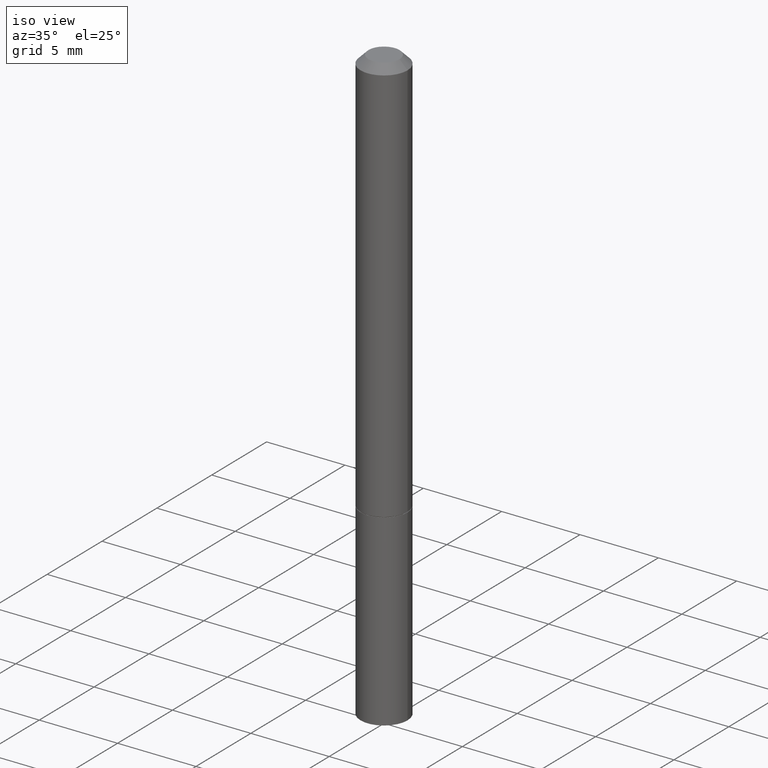
[diagram: clean part render]
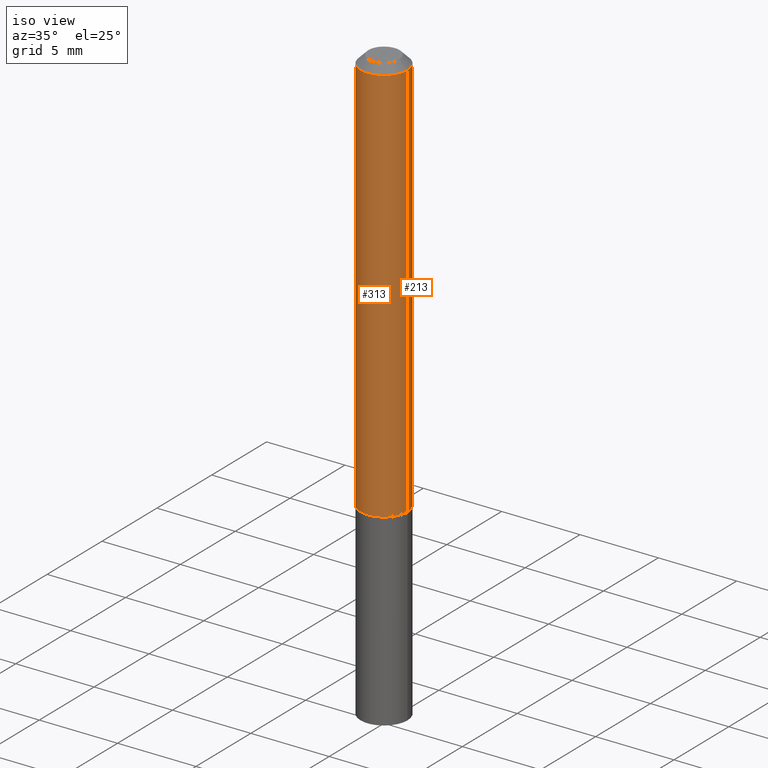
[diagram: same view with one multi-face feature highlighted, each face labeled with its STEP entity id]
A machine part, iso view. The highlighted faces form ONE feature: a constant-radius fillet chain: 2 tangent blend faces with common blend radius 1.4999 mm. The faces share edges in the B-rep.
Their STEP definitions:
[1] entity #313 (Cylinder):
#2 = CIRCLE ( 'NONE', #361, 0.05904999999999988036 ) ;
#12 = AXIS2_PLACEMENT_3D ( 'NONE', #307, #276, #244 ) ;
#16 = ORIENTED_EDGE ( 'NONE', *, *, #140, .T. ) ;
#43 = AXIS2_PLACEMENT_3D ( 'NONE', #124, #318, #178 ) ;
#61 = EDGE_CURVE ( 'NONE', #339, #366, #258, .T. ) ;
#63 = DIRECTION ( 'NONE',  ( -2.445468806185136597E-29, 3.491481338843145583E-15, 1.000000000000000000 ) ) ;
#72 = EDGE_LOOP ( 'NONE', ( #165, #133, #16, #364 ) ) ;
#82 = CARTESIAN_POINT ( 'NONE',  ( -0.05905000000000001914, -1.400708310539532881E-15, -1.022699999999999942 ) ) ;
#101 = VECTOR ( 'NONE', #295, 39.37007874015748143 ) ;
#110 = EDGE_CURVE ( 'NONE', #339, #182, #170, .T. ) ;
#124 = CARTESIAN_POINT ( 'NONE',  ( 2.500980948085539022E-29, -3.570737965234884606E-15, -1.022699999999999942 ) ) ;
#133 = ORIENTED_EDGE ( 'NONE', *, *, #110, .T. ) ;
#140 = EDGE_CURVE ( 'NONE', #182, #272, #235, .T. ) ;
#141 = CARTESIAN_POINT ( 'NONE',  ( -0.05904999999999988036, 3.425143193405099949E-16, -0.02000000000000007674 ) ) ;
#148 = EDGE_CURVE ( 'NONE', #366, #272, #2, .T. ) ;
#150 = CARTESIAN_POINT ( 'NONE',  ( 0.05905000000000001914, -3.983081911352258737E-15, -1.022699999999999942 ) ) ;
#162 = VECTOR ( 'NONE', #351, 39.37007874015748143 ) ;
#165 = ORIENTED_EDGE ( 'NONE', *, *, #61, .F. ) ;
#170 = CIRCLE ( 'NONE', #43, 0.05905000000000001914 ) ;
#178 = DIRECTION ( 'NONE',  ( 1.000000000000000000, -6.982962677686262766E-15, 0.000000000000000000 ) ) ;
#182 = VERTEX_POINT ( 'NONE', #150 ) ;
#188 = FACE_OUTER_BOUND ( 'NONE', #72, .T. ) ;
#200 = CARTESIAN_POINT ( 'NONE',  ( -0.05904999999999994975, 4.195754854663388027E-16, -2.904631170795519440E-30 ) ) ;
#235 = LINE ( 'NONE', #324, #101 ) ;
#243 = CARTESIAN_POINT ( 'NONE',  ( 0.05904999999999988036, -4.749420335452712790E-16, -0.02000000000000007674 ) ) ;
#244 = DIRECTION ( 'NONE',  ( 1.000000000000000000, -6.982962677686266711E-15, 4.876176775795935232E-29 ) ) ;
#258 = LINE ( 'NONE', #200, #162 ) ;
#272 = VERTEX_POINT ( 'NONE', #243 ) ;
#273 = CYLINDRICAL_SURFACE ( 'NONE', #12, 0.05904999999999994975 ) ;
#276 = DIRECTION ( 'NONE',  ( -2.445468806185136597E-29, 3.491481338843145583E-15, 1.000000000000000000 ) ) ;
#295 = DIRECTION ( 'NONE',  ( -2.445468806185136877E-29, 3.491481338843145188E-15, 1.000000000000000000 ) ) ;
#296 = CARTESIAN_POINT ( 'NONE',  ( 4.890937612370292426E-31, -6.982962677686317493E-17, -0.02000000000000007674 ) ) ;
#307 = CARTESIAN_POINT ( 'NONE',  ( 0.000000000000000000, 0.000000000000000000, 0.000000000000000000 ) ) ;
#313 = ADVANCED_FACE ( 'NONE', ( #188 ), #273, .T. ) ;
#318 = DIRECTION ( 'NONE',  ( -2.445468806185136597E-29, 3.491481338843145583E-15, 1.000000000000000000 ) ) ;
#324 = CARTESIAN_POINT ( 'NONE',  ( 0.05904999999999994975, -4.123439461173736876E-16, 2.879382386107497418E-30 ) ) ;
#339 = VERTEX_POINT ( 'NONE', #82 ) ;
#342 = DIRECTION ( 'NONE',  ( 1.000000000000000000, -6.982962677686266711E-15, 0.000000000000000000 ) ) ;
#351 = DIRECTION ( 'NONE',  ( -2.445468806185136877E-29, 3.491481338843145188E-15, 1.000000000000000000 ) ) ;
#361 = AXIS2_PLACEMENT_3D ( 'NONE', #296, #63, #342 ) ;
#364 = ORIENTED_EDGE ( 'NONE', *, *, #148, .F. ) ;
#366 = VERTEX_POINT ( 'NONE', #141 ) ;
[2] entity #213 (Cylinder):
#17 = CARTESIAN_POINT ( 'NONE',  ( 2.500980948085539022E-29, -3.570737965234884606E-15, -1.022699999999999942 ) ) ;
#30 = AXIS2_PLACEMENT_3D ( 'NONE', #292, #96, #69 ) ;
#46 = CARTESIAN_POINT ( 'NONE',  ( 0.000000000000000000, 0.000000000000000000, 0.000000000000000000 ) ) ;
#51 = FACE_OUTER_BOUND ( 'NONE', #277, .T. ) ;
#61 = EDGE_CURVE ( 'NONE', #339, #366, #258, .T. ) ;
#69 = DIRECTION ( 'NONE',  ( 1.000000000000000000, -6.982962677686266711E-15, 0.000000000000000000 ) ) ;
#73 = EDGE_CURVE ( 'NONE', #272, #366, #184, .T. ) ;
#82 = CARTESIAN_POINT ( 'NONE',  ( -0.05905000000000001914, -1.400708310539532881E-15, -1.022699999999999942 ) ) ;
#96 = DIRECTION ( 'NONE',  ( -2.445468806185136597E-29, 3.491481338843145583E-15, 1.000000000000000000 ) ) ;
#101 = VECTOR ( 'NONE', #295, 39.37007874015748143 ) ;
#136 = DIRECTION ( 'NONE',  ( -2.445468806185136597E-29, 3.491481338843145583E-15, 1.000000000000000000 ) ) ;
#140 = EDGE_CURVE ( 'NONE', #182, #272, #235, .T. ) ;
#141 = CARTESIAN_POINT ( 'NONE',  ( -0.05904999999999988036, 3.425143193405099949E-16, -0.02000000000000007674 ) ) ;
#143 = ORIENTED_EDGE ( 'NONE', *, *, #61, .T. ) ;
#147 = AXIS2_PLACEMENT_3D ( 'NONE', #17, #136, #330 ) ;
#150 = CARTESIAN_POINT ( 'NONE',  ( 0.05905000000000001914, -3.983081911352258737E-15, -1.022699999999999942 ) ) ;
#162 = VECTOR ( 'NONE', #351, 39.37007874015748143 ) ;
#182 = VERTEX_POINT ( 'NONE', #150 ) ;
#184 = CIRCLE ( 'NONE', #30, 0.05904999999999988036 ) ;
#196 = ORIENTED_EDGE ( 'NONE', *, *, #140, .F. ) ;
#200 = CARTESIAN_POINT ( 'NONE',  ( -0.05904999999999994975, 4.195754854663388027E-16, -2.904631170795519440E-30 ) ) ;
#213 = ADVANCED_FACE ( 'NONE', ( #51 ), #335, .T. ) ;
#235 = LINE ( 'NONE', #324, #101 ) ;
#237 = AXIS2_PLACEMENT_3D ( 'NONE', #46, #248, #358 ) ;
#243 = CARTESIAN_POINT ( 'NONE',  ( 0.05904999999999988036, -4.749420335452712790E-16, -0.02000000000000007674 ) ) ;
#248 = DIRECTION ( 'NONE',  ( -2.445468806185136597E-29, 3.491481338843145583E-15, 1.000000000000000000 ) ) ;
#258 = LINE ( 'NONE', #200, #162 ) ;
#263 = EDGE_CURVE ( 'NONE', #182, #339, #278, .T. ) ;
#269 = ORIENTED_EDGE ( 'NONE', *, *, #263, .T. ) ;
#272 = VERTEX_POINT ( 'NONE', #243 ) ;
#277 = EDGE_LOOP ( 'NONE', ( #269, #143, #311, #196 ) ) ;
#278 = CIRCLE ( 'NONE', #147, 0.05905000000000001914 ) ;
#292 = CARTESIAN_POINT ( 'NONE',  ( 4.890937612370292426E-31, -6.982962677686317493E-17, -0.02000000000000007674 ) ) ;
#295 = DIRECTION ( 'NONE',  ( -2.445468806185136877E-29, 3.491481338843145188E-15, 1.000000000000000000 ) ) ;
#311 = ORIENTED_EDGE ( 'NONE', *, *, #73, .F. ) ;
#324 = CARTESIAN_POINT ( 'NONE',  ( 0.05904999999999994975, -4.123439461173736876E-16, 2.879382386107497418E-30 ) ) ;
#330 = DIRECTION ( 'NONE',  ( 1.000000000000000000, -6.982962677686262766E-15, 0.000000000000000000 ) ) ;
#335 = CYLINDRICAL_SURFACE ( 'NONE', #237, 0.05904999999999994975 ) ;
#339 = VERTEX_POINT ( 'NONE', #82 ) ;
#351 = DIRECTION ( 'NONE',  ( -2.445468806185136877E-29, 3.491481338843145188E-15, 1.000000000000000000 ) ) ;
#358 = DIRECTION ( 'NONE',  ( 1.000000000000000000, -6.982962677686266711E-15, 4.876176775795935232E-29 ) ) ;
#366 = VERTEX_POINT ( 'NONE', #141 ) ;